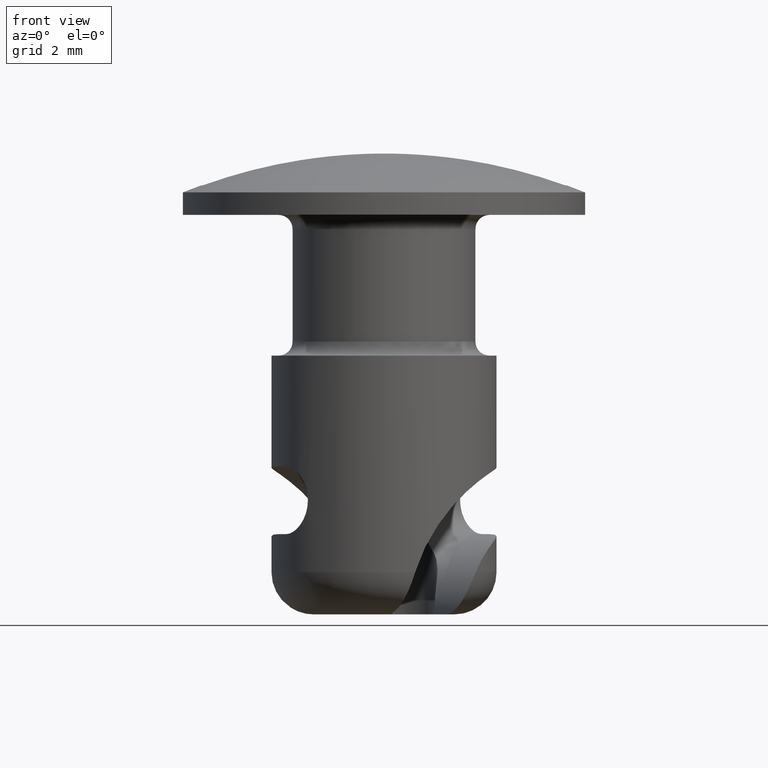
[diagram: clean part render]
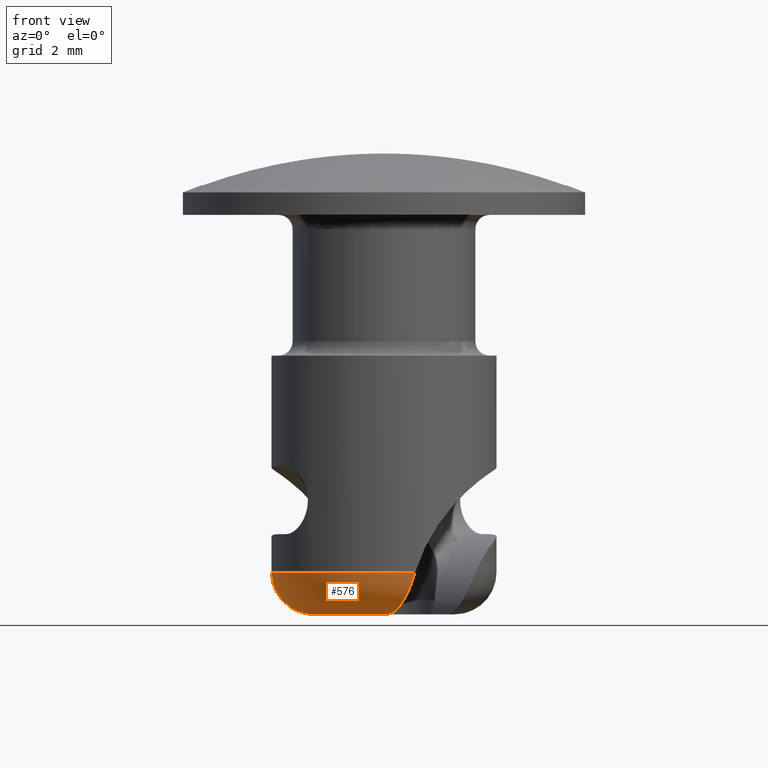
[diagram: same view with one face highlighted and labeled with its STEP entity id]
A machine part, front view. The second image highlights one B-rep face of the part: STEP entity #576.
In plain terms, the highlighted toroidal blend (fillet) surface has major radius 2.5 mm and minor (blend) radius 1.5 mm.
Its self-contained STEP definition (entity closure, byte-faithful):
#74 = CARTESIAN_POINT ( 'NONE',  ( -2.240226369694543300, 1.480187086471006900, -4.055927999999944700 ) ) ;
#204 = CARTESIAN_POINT ( 'NONE',  ( 0.4667394063586882100, -3.199167724819091100, -3.879260321841057700 ) ) ;
#225 = FACE_OUTER_BOUND ( 'NONE', #1674, .T. ) ;
#229 = EDGE_CURVE ( 'NONE', #2571, #1962, #1319, .T. ) ;
#414 = CARTESIAN_POINT ( 'NONE',  ( 0.1611035543529213400, -2.680037477917260400, -4.055928000000033500 ) ) ;
#442 = AXIS2_PLACEMENT_3D ( 'NONE', #1017, #2618, #872 ) ;
#474 = CARTESIAN_POINT ( 'NONE',  ( 0.05678652249461620800, -2.499354974961175200, -4.055928000000000600 ) ) ;
#576 = ADVANCED_FACE ( 'NONE', ( #225 ), #1896, .T. ) ;
#604 = EDGE_CURVE ( 'NONE', #810, #861, #1343, .T. ) ;
#627 = VERTEX_POINT ( 'NONE', #1595 ) ;
#642 = AXIS2_PLACEMENT_3D ( 'NONE', #1271, #2080, #2016 ) ;
#810 = VERTEX_POINT ( 'NONE', #474 ) ;
#831 = CARTESIAN_POINT ( 'NONE',  ( 0.9761126366509662600, -3.828150070365853500, -2.950779561917071800 ) ) ;
#836 = ORIENTED_EDGE ( 'NONE', *, *, #1594, .T. ) ;
#861 = VERTEX_POINT ( 'NONE', #2521 ) ;
#872 = DIRECTION ( 'NONE',  ( 1.000000000000000000, 0.0000000000000000000, 0.0000000000000000000 ) ) ;
#998 = DIRECTION ( 'NONE',  ( 0.0000000000000000000, 0.0000000000000000000, 1.000000000000000000 ) ) ;
#1017 = CARTESIAN_POINT ( 'NONE',  ( 0.0000000000000000000, 0.0000000000000000000, -2.555927999999999800 ) ) ;
#1031 = CARTESIAN_POINT ( 'NONE',  ( -3.257253687949085200, 2.321701620006849900, -2.555927999999999800 ) ) ;
#1041 = CARTESIAN_POINT ( 'NONE',  ( 0.8629140910424201200, -3.744373541031671900, -3.232700028630489400 ) ) ;
#1045 = CARTESIAN_POINT ( 'NONE',  ( -3.105340106968700600, 2.455743244475076600, -2.917791203964304400 ) ) ;
#1129 = CARTESIAN_POINT ( 'NONE',  ( -2.646643497363179200, 2.147247829503947900, -3.767550300340745100 ) ) ;
#1163 = AXIS2_PLACEMENT_3D ( 'NONE', #1360, #1388, #1433 ) ;
#1258 = CARTESIAN_POINT ( 'NONE',  ( 0.7405787421037746100, -3.606501496627410500, -3.485310298646945500 ) ) ;
#1261 = CARTESIAN_POINT ( 'NONE',  ( -2.975919885701070500, 2.454876455960262000, -3.201516127076832400 ) ) ;
#1271 = CARTESIAN_POINT ( 'NONE',  ( 0.0000000000000000000, 0.0000000000000000000, -2.555927999999999800 ) ) ;
#1319 = CIRCLE ( 'NONE', #642, 4.000000000000045300 ) ;
#1324 = ORIENTED_EDGE ( 'NONE', *, *, #1515, .F. ) ;
#1343 = CIRCLE ( 'NONE', #1163, 2.500000000000045300 ) ;
#1355 = CARTESIAN_POINT ( 'NONE',  ( -2.344400513302337300, 1.660151883955651700, -4.022184576184947100 ) ) ;
#1360 = CARTESIAN_POINT ( 'NONE',  ( 0.0000000000000000000, 0.0000000000000000000, -4.055928000000000600 ) ) ;
#1388 = DIRECTION ( 'NONE',  ( -0.0000000000000000000, -0.0000000000000000000, -1.000000000000000000 ) ) ;
#1392 = ORIENTED_EDGE ( 'NONE', *, *, #229, .F. ) ;
#1414 = CIRCLE ( 'NONE', #2251, 4.000000000000045300 ) ;
#1433 = DIRECTION ( 'NONE',  ( 1.000000000000000000, 8.881784197001252300E-016, 0.0000000000000000000 ) ) ;
#1475 = CARTESIAN_POINT ( 'NONE',  ( 0.5632610136568372300, -3.356266332559755900, -3.770288615684792800 ) ) ;
#1479 = CARTESIAN_POINT ( 'NONE',  ( -2.837902285769438000, 2.366461575884261300, -3.468323607179005100 ) ) ;
#1515 = EDGE_CURVE ( 'NONE', #1962, #627, #1414, .T. ) ;
#1560 = CARTESIAN_POINT ( 'NONE',  ( -2.135815771650950300, 1.299342522035008100, -4.055928000000000600 ) ) ;
#1594 = EDGE_CURVE ( 'NONE', #2571, #861, #2565, .T. ) ;
#1595 = CARTESIAN_POINT ( 'NONE',  ( 1.108397808777359800, -3.843364970634185300, -2.555927999999999800 ) ) ;
#1674 = EDGE_LOOP ( 'NONE', ( #1392, #836, #2400, #1871, #1324 ) ) ;
#1676 = CARTESIAN_POINT ( 'NONE',  ( 0.2666432078907424700, -2.862513171778047600, -4.021326483487508000 ) ) ;
#1711 = CARTESIAN_POINT ( 'NONE',  ( -4.000000000000045300, 0.0000000000000000000, -2.555927999999999800 ) ) ;
#1854 = CARTESIAN_POINT ( 'NONE',  ( 1.077547685918882600, -3.852261916107252200, -2.656490853154524200 ) ) ;
#1871 = ORIENTED_EDGE ( 'NONE', *, *, #2535, .F. ) ;
#1872 = CARTESIAN_POINT ( 'NONE',  ( 0.05678652249461620800, -2.499354974961175200, -4.055928000000000600 ) ) ;
#1896 = TOROIDAL_SURFACE ( 'NONE', #442, 2.500000000000045300, 1.500000000000000000 ) ;
#1962 = VERTEX_POINT ( 'NONE', #1711 ) ;
#2016 = DIRECTION ( 'NONE',  ( 1.000000000000000000, 0.0000000000000000000, 0.0000000000000000000 ) ) ;
#2069 = CARTESIAN_POINT ( 'NONE',  ( 1.045011278428364700, -3.850823402305097300, -2.755590278062849800 ) ) ;
#2080 = DIRECTION ( 'NONE',  ( 0.0000000000000000000, 0.0000000000000000000, 1.000000000000000000 ) ) ;
#2172 = CARTESIAN_POINT ( 'NONE',  ( -2.790311070923482600, 2.318811027943144400, -3.550012928386042900 ) ) ;
#2228 = CARTESIAN_POINT ( 'NONE',  ( 0.0000000000000000000, 0.0000000000000000000, -2.555927999999999800 ) ) ;
#2251 = AXIS2_PLACEMENT_3D ( 'NONE', #2228, #998, #2438 ) ;
#2262 = CARTESIAN_POINT ( 'NONE',  ( -3.222293490510822700, 2.370749366304608900, -2.641862774587119500 ) ) ;
#2268 = CARTESIAN_POINT ( 'NONE',  ( 0.9393113789079501300, -3.806504232003268500, -3.047904179911969300 ) ) ;
#2271 = CARTESIAN_POINT ( 'NONE',  ( -3.185170871468793400, 2.407990601807792800, -2.731295587996684900 ) ) ;
#2301 = CARTESIAN_POINT ( 'NONE',  ( -3.257253687949085200, 2.321701620006849900, -2.555927999999999800 ) ) ;
#2373 = B_SPLINE_CURVE_WITH_KNOTS ( 'NONE', 3,
 ( #2680, #1854, #2069, #831, #2268, #1041, #2477, #1258, #2686, #1475, #204, #1676, #414, #1872 ),
 .UNSPECIFIED., .F., .F.,
 ( 4, 2, 2, 2, 2, 2, 4 ),
 ( 2.069731377641049100E-007, 0.0003124171688556495200, 0.0006246273645735349800, 0.0009368375602914204000, 0.001249047756009305800, 0.001873468147445075800, 0.002497888538880845100 ),
 .UNSPECIFIED. ) ;
#2400 = ORIENTED_EDGE ( 'NONE', *, *, #604, .F. ) ;
#2438 = DIRECTION ( 'NONE',  ( 1.000000000000000000, 0.0000000000000000000, 0.0000000000000000000 ) ) ;
#2477 = CARTESIAN_POINT ( 'NONE',  ( 0.8234494711917143000, -3.704232393046660700, -3.320244744276941600 ) ) ;
#2480 = CARTESIAN_POINT ( 'NONE',  ( -3.062992992517299400, 2.465504154251822100, -3.013908948051653900 ) ) ;
#2521 = CARTESIAN_POINT ( 'NONE',  ( -2.135815771650950300, 1.299342522035008100, -4.055928000000000600 ) ) ;
#2535 = EDGE_CURVE ( 'NONE', #627, #810, #2373, .T. ) ;
#2560 = CARTESIAN_POINT ( 'NONE',  ( -2.547849212420946400, 1.994230781874678300, -3.878181529687490900 ) ) ;
#2565 = B_SPLINE_CURVE_WITH_KNOTS ( 'NONE', 3,
 ( #1031, #2262, #2271, #1045, #2480, #1261, #2690, #1479, #2172, #1129, #2560, #1355, #74, #1560 ),
 .UNSPECIFIED., .F., .F.,
 ( 4, 2, 2, 2, 2, 2, 4 ),
 ( 2.413043694512743200E-007, 0.0003112779674285114800, 0.0006223146304875716600, 0.0009333512935466320000, 0.001244387956605692000, 0.001866461282723812700, 0.002488534608841932300 ),
 .UNSPECIFIED. ) ;
#2571 = VERTEX_POINT ( 'NONE', #2301 ) ;
#2618 = DIRECTION ( 'NONE',  ( 0.0000000000000000000, 0.0000000000000000000, 1.000000000000000000 ) ) ;
#2680 = CARTESIAN_POINT ( 'NONE',  ( 1.108397808777359800, -3.843364970634185300, -2.555927999999999800 ) ) ;
#2686 = CARTESIAN_POINT ( 'NONE',  ( 0.6969373868598151000, -3.548447780571618400, -3.562983429896619600 ) ) ;
#2690 = CARTESIAN_POINT ( 'NONE',  ( -2.930081196352731800, 2.434153306081982200, -3.295241119053631300 ) ) ;